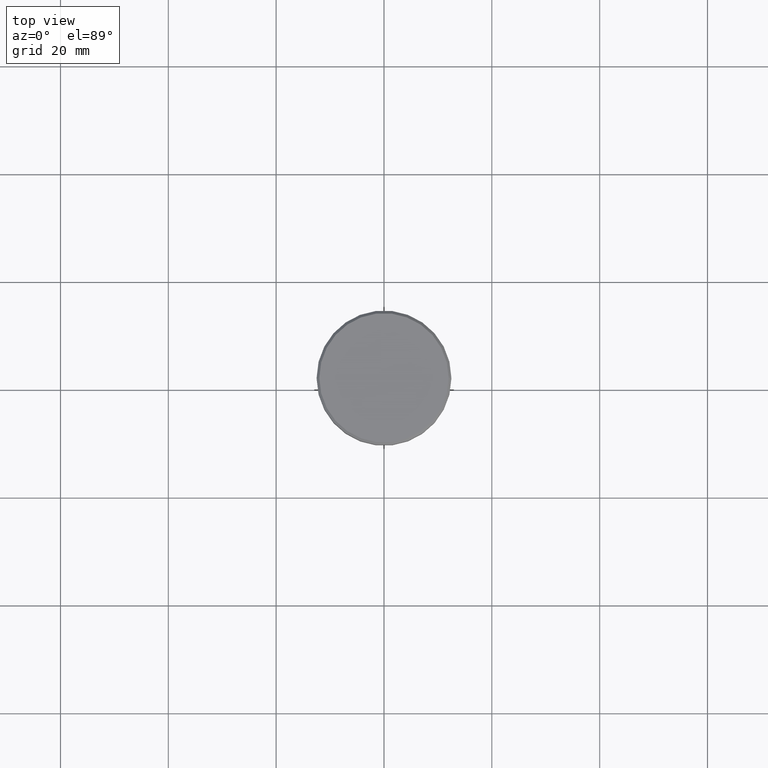
[diagram: clean part render]
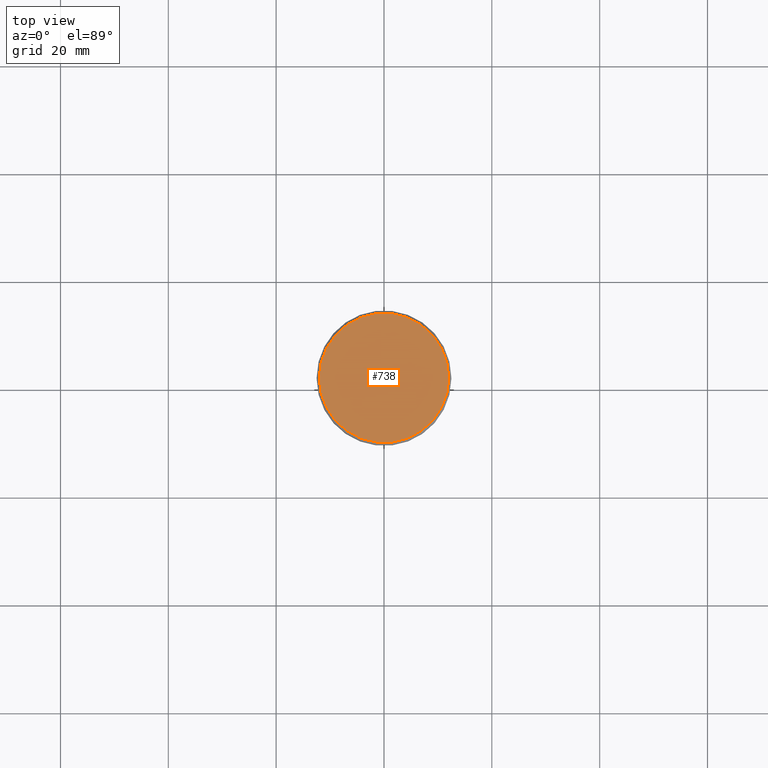
[diagram: same view with one face highlighted and labeled with its STEP entity id]
A machine part, top view. The second image highlights one B-rep face of the part: STEP entity #738.
In plain terms, the highlighted planar face has unit normal (0, -0, 1).
Its self-contained STEP definition (entity closure, byte-faithful):
#38 = CARTESIAN_POINT ( 'NONE',  ( -12.00000000000001066, 0.000000000000000000, 0.000000000000000000 ) ) ;
#41 = CARTESIAN_POINT ( 'NONE',  ( 0.000000000000000000, 0.000000000000000000, 0.000000000000000000 ) ) ;
#53 = EDGE_CURVE ( 'NONE', #54, #246, #429, .T. ) ;
#54 = VERTEX_POINT ( 'NONE', #969 ) ;
#127 = DIRECTION ( 'NONE',  ( -0.000000000000000000, -0.000000000000000000, 1.000000000000000000 ) ) ;
#180 = PLANE ( 'NONE',  #233 ) ;
#233 = AXIS2_PLACEMENT_3D ( 'NONE', #905, #830, #1089 ) ;
#246 = VERTEX_POINT ( 'NONE', #38 ) ;
#282 = ORIENTED_EDGE ( 'NONE', *, *, #939, .T. ) ;
#399 = ORIENTED_EDGE ( 'NONE', *, *, #53, .T. ) ;
#402 = DIRECTION ( 'NONE',  ( 1.000000000000000000, 0.000000000000000000, 0.000000000000000000 ) ) ;
#429 = CIRCLE ( 'NONE', #962, 12.00000000000001066 ) ;
#497 = DIRECTION ( 'NONE',  ( 1.000000000000000000, 0.000000000000000000, 0.000000000000000000 ) ) ;
#583 = CARTESIAN_POINT ( 'NONE',  ( 0.000000000000000000, 0.000000000000000000, 0.000000000000000000 ) ) ;
#707 = AXIS2_PLACEMENT_3D ( 'NONE', #583, #949, #402 ) ;
#738 = ADVANCED_FACE ( 'NONE', ( #1177 ), #180, .T. ) ;
#830 = DIRECTION ( 'NONE',  ( 0.000000000000000000, -0.000000000000000000, 1.000000000000000000 ) ) ;
#877 = CIRCLE ( 'NONE', #707, 12.00000000000001066 ) ;
#905 = CARTESIAN_POINT ( 'NONE',  ( 0.000000000000000000, 0.000000000000000000, 0.000000000000000000 ) ) ;
#939 = EDGE_CURVE ( 'NONE', #246, #54, #877, .T. ) ;
#948 = EDGE_LOOP ( 'NONE', ( #282, #399 ) ) ;
#949 = DIRECTION ( 'NONE',  ( -0.000000000000000000, -0.000000000000000000, 1.000000000000000000 ) ) ;
#962 = AXIS2_PLACEMENT_3D ( 'NONE', #41, #127, #497 ) ;
#969 = CARTESIAN_POINT ( 'NONE',  ( 12.00000000000001066, 1.500192328955508326E-15, 0.000000000000000000 ) ) ;
#1089 = DIRECTION ( 'NONE',  ( 1.000000000000000000, 0.000000000000000000, 0.000000000000000000 ) ) ;
#1177 = FACE_OUTER_BOUND ( 'NONE', #948, .T. ) ;